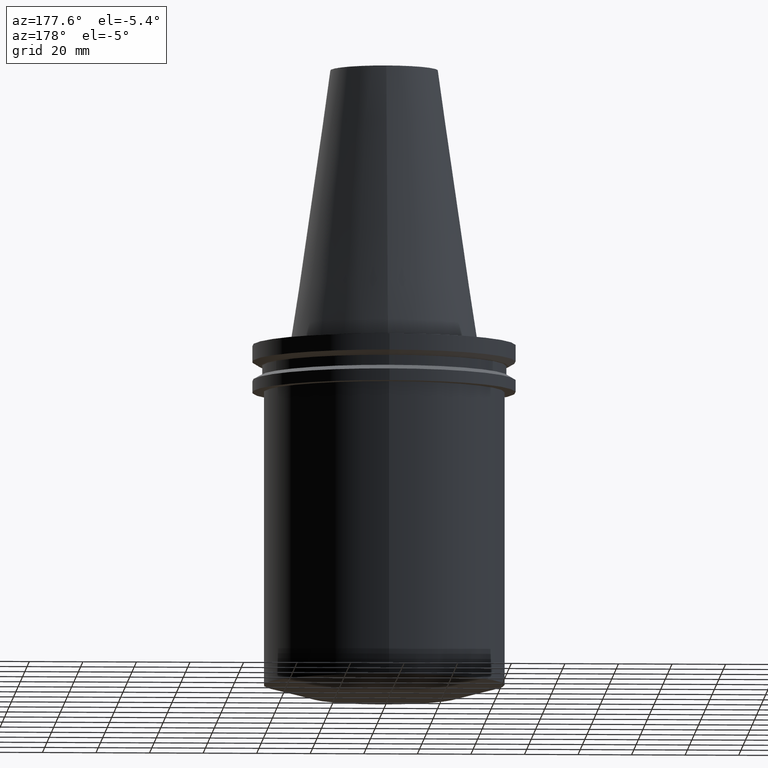
[diagram: clean part render]
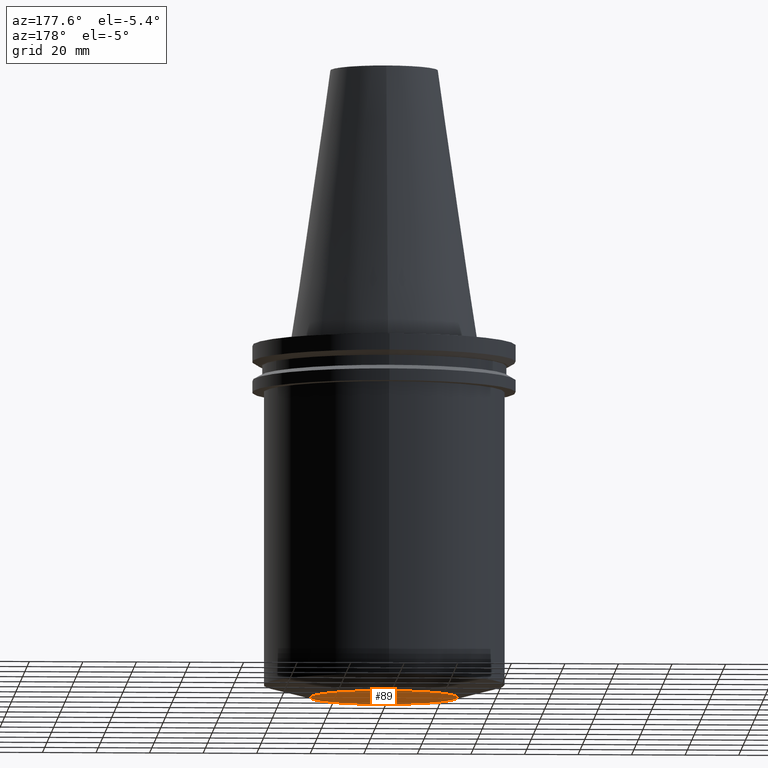
[diagram: same view with one face highlighted and labeled with its STEP entity id]
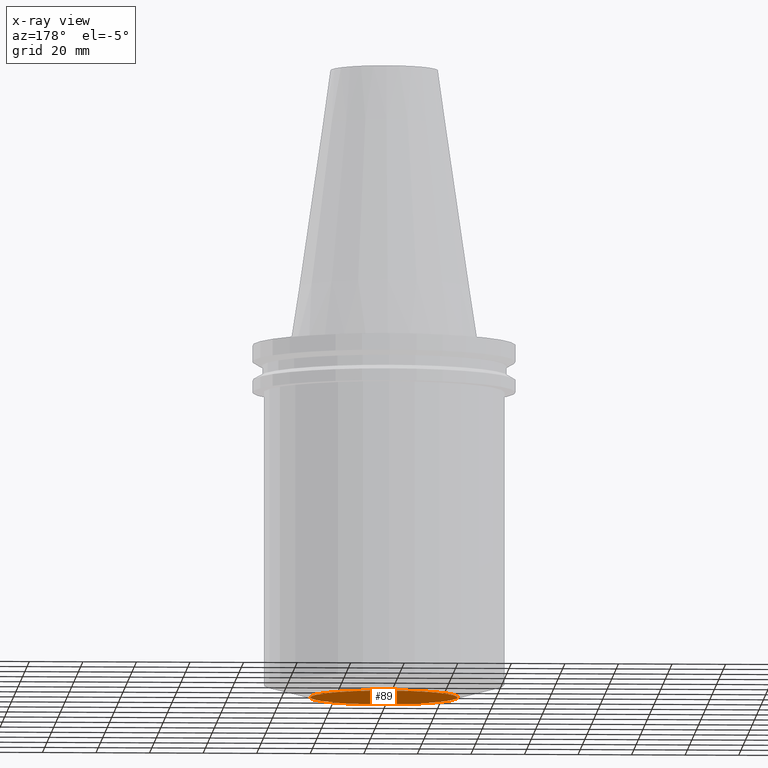
[diagram: x-ray of the same camera — body ghosted, the highlighted face saturated]
A machine part, auxiliary view. The second image highlights one B-rep face of the part: STEP entity #89.
The next image is the same camera in x-ray: the body ghosted, the highlighted face saturated — about 0% of this face is hidden behind the body in this view.
In plain terms, the highlighted planar face has unit normal (0, 0, -1).
Its self-contained STEP definition (entity closure, byte-faithful):
#89=ADVANCED_FACE('Unnamed[1]',(#199),#200,.T.);
#100=EDGE_CURVE('Unnamed[1]',#216,#216,#217,.T.);
#199=FACE_OUTER_BOUND('',#336,.T.);
#200=PLANE('',#337);
#216=VERTEX_POINT('',#358);
#217=CIRCLE('',#359,27.500000000018);
#336=EDGE_LOOP('',(#475));
#337=AXIS2_PLACEMENT_3D('',#476,#477,#478);
#358=CARTESIAN_POINT('',(8.16533253331496E-015,27.500000000018,-133.35));
#359=AXIS2_PLACEMENT_3D('',#494,#495,#496);
#475=ORIENTED_EDGE('',*,*,#100,.T.);
#476=CARTESIAN_POINT('',(8.16533253331497E-015,13.750000000009,-133.35));
#477=DIRECTION('',(6.12323399573677E-017,2.18949809303367E-015,-1.0));
#478=DIRECTION('',(-1.38895244299415E-031,1.0,2.18949809303367E-015));
#494=CARTESIAN_POINT('',(8.16533253331496E-015,1.63306650666299E-014,-133.35));
#495=DIRECTION('',(6.12323399573677E-017,1.22464679914735E-016,-1.0));
#496=DIRECTION('',(-1.23259516440783E-032,1.0,1.22464679914735E-016));